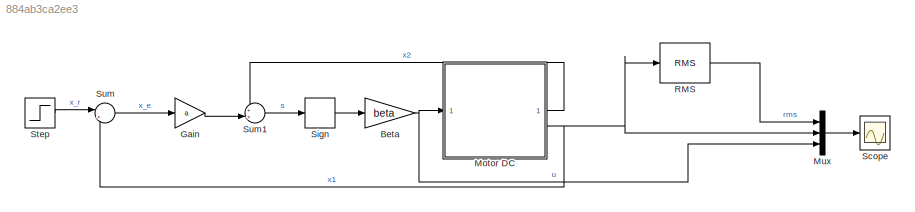
MODEL slx_884ab3ca2ee3
KIND model
CONFIG AbsTol = auto
CONFIG EnableMultiTasking = off
CONFIG FixedStep = auto
CONFIG MaxStep = auto
CONFIG MinStep = auto
CONFIG RelTol = 1e-3
CONFIG SampleTimeConstraint = Unconstrained
CONFIG SolverName = VariableStepAuto
CONFIG StartTime = 0.0
CONFIG StopTime = 30
BLOCK [Gain] Beta
  Gain = beta
BLOCK [Gain] Gain
  Gain = a
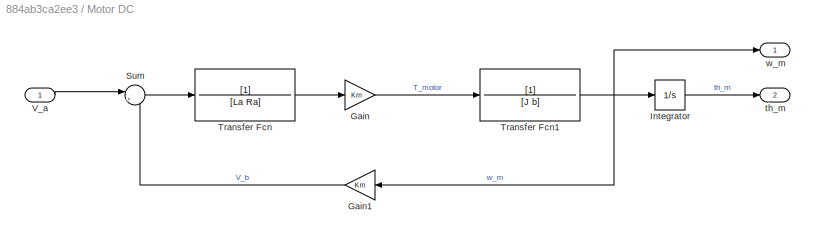
BLOCK [SubSystem] Motor DC
BLOCK [Gain] Motor DC/Gain
  Gain = Km
BLOCK [Gain] Motor DC/Gain1
  Gain = Km
BLOCK [Integrator] Motor DC/Integrator
BLOCK [Sum] Motor DC/Sum
  Inputs = |+-
BLOCK [TransferFcn] Motor DC/Transfer Fcn
  Denominator = [La Ra]
BLOCK [TransferFcn] Motor DC/Transfer Fcn1
  Denominator = [J b]
BLOCK [Inport] Motor DC/V_a
BLOCK [Outport] Motor DC/th_m
  Port = 2
BLOCK [Outport] Motor DC/w_m
BLOCK [Mux] Mux
  DisplayOption = bar
  Inputs = 3
BLOCK [Reference] RMS  REF=spsRMSLib/RMS
  LibrarySourceBlock = sps_lib/Sensors and Measurements/RMS
  SourceBlock = spsRMSLib/RMS
  SourceType = RMS
BLOCK [Scope] Scope
  Floating = off
  NumInputPorts = 1
  ScopeSpecificationString = Simulink.scopes.TimeScopeBlockCfg('CurrentConfiguration', extmgr.ConfigurationSet(extmgr.Configuration('Core','General UI',true,'FigureColor',[1 1 1]),extmgr.Configuration('Core','Source UI',true),extmgr.Configuration('Sources','WiredSimulink',true,'DataLogging',true,'DataLoggingVariableName','DatosSimulacion','DataLoggingSaveFormat','StructureWithTime'),extmgr.Configuration('Visuals','Time Domain...<+1956ch>
BLOCK [Signum] Sign
BLOCK [Step] Step
  SampleTime = 0
BLOCK [Sum] Sum
  Inputs = |+-
BLOCK [Sum] Sum1
  Inputs = ++|
NET Beta:1 -> Motor DC:1, Mux:3
LINE Gain:1 -> Sum1:2
LINE Motor DC/Gain1:1 -> Motor DC/Sum:2
LINE Motor DC/Gain:1 -> Motor DC/Transfer Fcn1:1
LINE Motor DC/Integrator:1 -> Motor DC/th_m:1
LINE Motor DC/Sum:1 -> Motor DC/Transfer Fcn:1
NET Motor DC/Transfer Fcn1:1 -> Motor DC/Gain1:1, Motor DC/Integrator:1, Motor DC/w_m:1
LINE Motor DC/Transfer Fcn:1 -> Motor DC/Gain:1
LINE Motor DC/V_a:1 -> Motor DC/Sum:1
LINE Motor DC:1 -> Sum1:1
NET Motor DC:2 -> Mux:2, RMS:1, Sum:2
LINE Mux:1 -> Scope:1
LINE RMS:1 -> Mux:1
LINE Sign:1 -> Beta:1
LINE Step:1 -> Sum:1
LINE Sum1:1 -> Sign:1
LINE Sum:1 -> Gain:1
note: NET lines group one-source signal fan-out (src -> all destinations, sorted); 1:1 wires keep LINE
